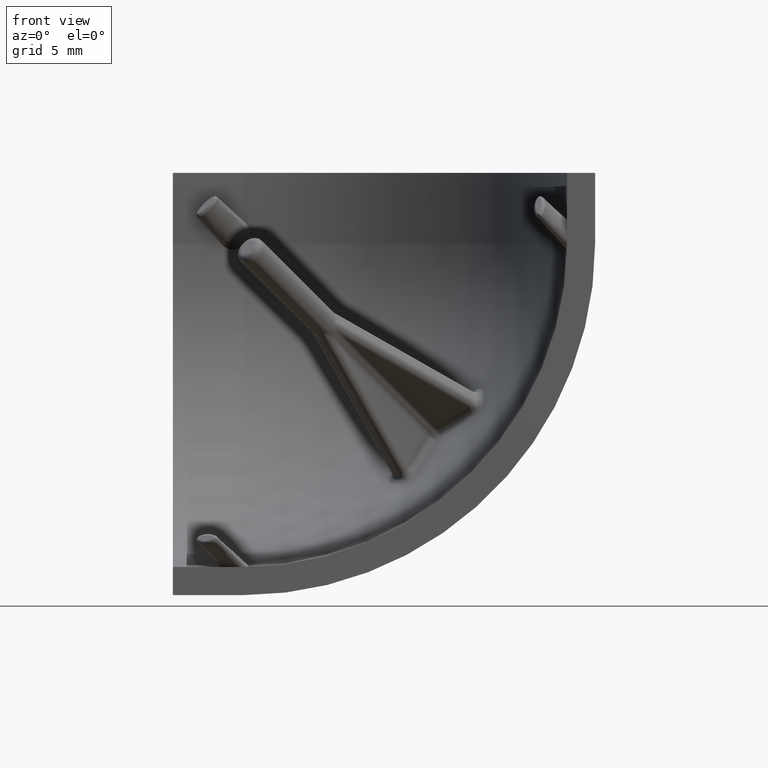
[diagram: clean part render]
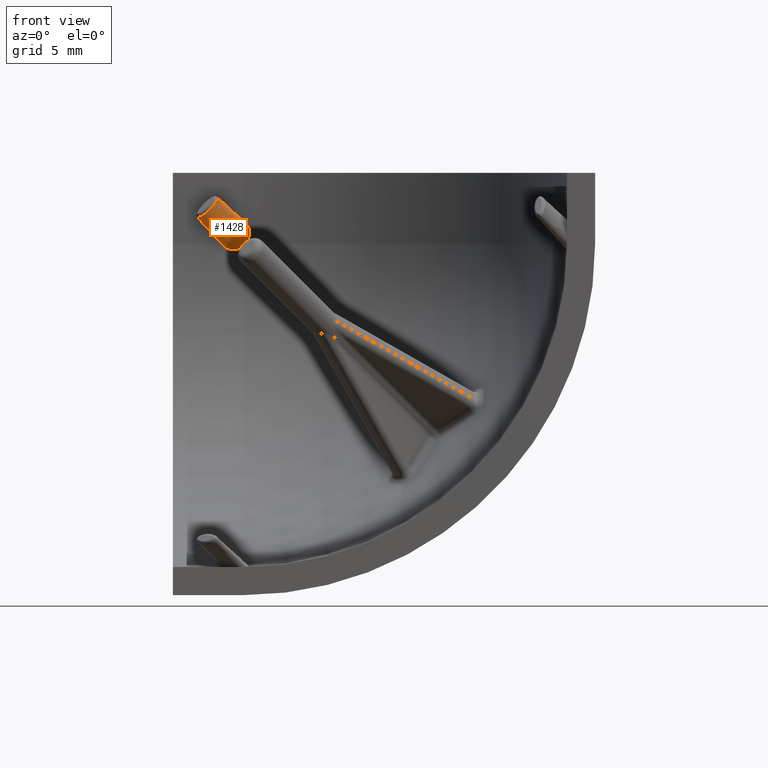
[diagram: same view with one face highlighted and labeled with its STEP entity id]
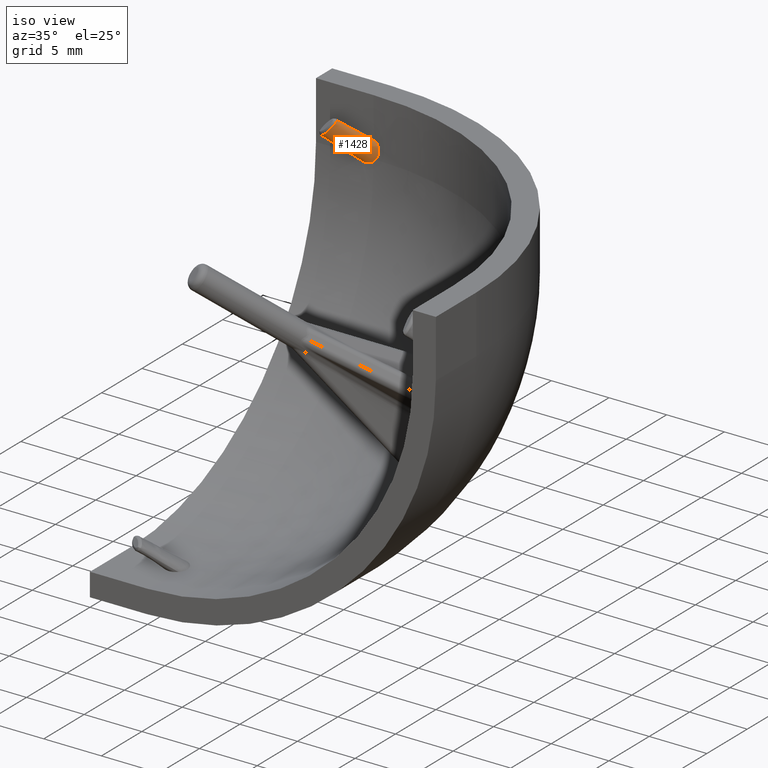
[diagram: same view with one face highlighted and labeled with its STEP entity id]
A machine part, front view. The second image highlights one B-rep face of the part: STEP entity #1428.
A second angle (iso view) of the same face is appended — the face is thin or edge-on in the first view.
In plain terms, the highlighted face is a freeform B-spline surface patch.
Its self-contained STEP definition (entity closure, byte-faithful):
#240=FACE_OUTER_BOUND('',#330,.T.);
#330=EDGE_LOOP('',(#1195,#1196,#1197,#1198,#1199,#1200));
#372=LINE('',#2154,#430);
#373=LINE('',#2329,#431);
#430=VECTOR('',#1648,10.);
#431=VECTOR('',#1649,10.);
#517=B_SPLINE_CURVE_WITH_KNOTS('',3,(#3700,#3701,#3702,#3703,#3704,#3705,
#3706,#3707,#3708,#3709,#3710,#3711,#3712,#3713,#3714,#3715,#3716,#3717,
#3718,#3719,#3720,#3721,#3722,#3723,#3724,#3725,#3726,#3727,#3728,#3729,
#3730,#3731,#3732,#3733,#3734,#3735,#3736,#3737,#3738,#3739,#3740,#3741,
#3742,#3743,#3744,#3745,#3746,#3747,#3748,#3749,#3750,#3751,#3752,#3753,
#3754,#3755,#3756,#3757,#3758,#3759,#3760,#3761,#3762,#3763,#3764,#3765,
#3766,#3767,#3768,#3769,#3770,#3771,#3772,#3773,#3774,#3775,#3776,#3777,
#3778,#3779,#3780,#3781,#3782,#3783,#3784,#3785,#3786,#3787,#3788,#3789,
#3790,#3791,#3792,#3793,#3794,#3795,#3796,#3797,#3798,#3799,#3800,#3801,
#3802,#3803,#3804,#3805,#3806,#3807,#3808,#3809,#3810,#3811,#3812,#3813,
#3814,#3815,#3816,#3817,#3818,#3819,#3820,#3821,#3822,#3823,#3824,#3825,
#3826,#3827,#3828,#3829,#3830,#3831,#3832,#3833,#3834,#3835,#3836,#3837,
#3838,#3839,#3840,#3841),.UNSPECIFIED.,.F.,.F.,(4,3,3,3,3,3,3,3,3,3,3,3,
3,3,3,3,3,3,3,3,3,3,3,3,3,3,3,3,3,3,3,3,3,3,3,3,3,3,3,3,3,3,3,3,3,3,3,4),
(0.00244537196912343,0.00248445449393359,0.00252441710611752,0.0025399652605974,
0.00258336981539401,0.00259682195368275,0.00264150173162119,0.00264555716888897,
0.00269126632456541,0.0027392655122121,0.00274827193842269,0.00280328932309507,
0.0028616416476709,0.00291414057849434,0.002975357892232,0.00304027490503444,
0.00305117190790258,0.00313214183725704,0.00321859081474745,0.00326044219092331,
0.00335211347786777,0.00345272791636951,0.00356148792971006,0.00365697184686234,
0.00365766623042668,0.00377079154052119,0.00387802063892507,0.00397543766767509,
0.00405280962034463,0.00414333337011766,0.00422810589758038,0.00426277178582211,
0.00432763230791863,0.00438867317352792,0.00440001354176547,0.00445873573655746,
0.00451395766752301,0.00456567175530199,0.00461064585508473,0.00465327079302746,
0.00466930889817401,0.00471039332471976,0.00471712174004193,0.00476649327290712,
0.00477433113852041,0.00482145126904115,0.00486545390892396,0.00486857139956189),
 .UNSPECIFIED.);
#533=B_SPLINE_CURVE_WITH_KNOTS('',3,(#5029,#5030,#5031,#5032,#5033,#5034),
 .UNSPECIFIED.,.F.,.F.,(4,2,4),(9.9999999027614E-7,0.013534445977808,0.0270688919186138),
 .UNSPECIFIED.);
#542=B_SPLINE_CURVE_WITH_KNOTS('',3,(#5455,#5456,#5457,#5458,#5459,#5460,
#5461,#5462,#5463,#5464,#5465,#5466),.UNSPECIFIED.,.F.,.F.,(4,2,2,2,2,4),
(-0.0952575882703191,-0.0835706036360662,-0.0668913170508683,-0.0406996222693887,
-0.0203613056663519,-9.99999175799182E-7),.UNSPECIFIED.);
#547=B_SPLINE_CURVE_WITH_KNOTS('',3,(#5538,#5539,#5540,#5541,#5542,#5543,
#5544,#5545,#5546,#5547,#5548,#5549),.UNSPECIFIED.,.F.,.F.,(4,2,2,2,2,4),
(9.999999404831E-7,0.0364918917763539,0.088569232202797,0.170365590608539,
0.233890730315202,0.297485880107794),.UNSPECIFIED.);
#561=VERTEX_POINT('',#2145);
#563=VERTEX_POINT('',#2153);
#566=VERTEX_POINT('',#2321);
#567=VERTEX_POINT('',#2328);
#641=VERTEX_POINT('',#5025);
#643=VERTEX_POINT('',#5028);
#701=EDGE_CURVE('',#561,#563,#372,.T.);
#705=EDGE_CURVE('',#567,#566,#373,.T.);
#762=EDGE_CURVE('',#566,#563,#517,.T.);
#793=EDGE_CURVE('',#641,#643,#533,.T.);
#842=EDGE_CURVE('',#641,#567,#542,.T.);
#857=EDGE_CURVE('',#643,#561,#547,.T.);
#1195=ORIENTED_EDGE('',*,*,#701,.F.);
#1196=ORIENTED_EDGE('',*,*,#857,.F.);
#1197=ORIENTED_EDGE('',*,*,#793,.F.);
#1198=ORIENTED_EDGE('',*,*,#842,.T.);
#1199=ORIENTED_EDGE('',*,*,#705,.T.);
#1200=ORIENTED_EDGE('',*,*,#762,.T.);
#1380=B_SPLINE_SURFACE_WITH_KNOTS('',1,3,((#5998,#5999,#6000,#6001,#6002,
#6003,#6004,#6005,#6006,#6007,#6008,#6009,#6010,#6011,#6012,#6013,#6014,
#6015,#6016,#6017,#6018,#6019,#6020,#6021,#6022,#6023,#6024,#6025,#6026,
#6027,#6028,#6029,#6030,#6031,#6032,#6033,#6034,#6035,#6036,#6037,#6038,
#6039),(#6040,#6041,#6042,#6043,#6044,#6045,#6046,#6047,#6048,#6049,#6050,
#6051,#6052,#6053,#6054,#6055,#6056,#6057,#6058,#6059,#6060,#6061,#6062,
#6063,#6064,#6065,#6066,#6067,#6068,#6069,#6070,#6071,#6072,#6073,#6074,
#6075,#6076,#6077,#6078,#6079,#6080,#6081),(#6082,#6083,#6084,#6085,#6086,
#6087,#6088,#6089,#6090,#6091,#6092,#6093,#6094,#6095,#6096,#6097,#6098,
#6099,#6100,#6101,#6102,#6103,#6104,#6105,#6106,#6107,#6108,#6109,#6110,
#6111,#6112,#6113,#6114,#6115,#6116,#6117,#6118,#6119,#6120,#6121,#6122,
#6123)),.UNSPECIFIED.,.F.,.T.,.F.,(2,1,2),(4,2,2,2,2,2,2,2,2,2,2,2,2,2,
2,2,2,2,2,2,4),(-0.144061170409498,0.,1.),(0.,0.196349540849362,0.392699081698724,
0.785398163397448,1.17809724509617,1.5707963267949,1.96349540849362,2.35619449019234,
2.74889357189107,2.94524311274043,3.14159265358979,3.33794219443916,3.53429173528852,
3.92699081698724,4.31968989868597,4.71238898038469,5.10508806208341,5.49778714378214,
5.89048622548086,6.08683576633022,6.28318530717959),.UNSPECIFIED.);
#1428=ADVANCED_FACE('',(#240),#1380,.F.);
#1648=DIRECTION('',(-0.552320892226753,-0.57699856300517,0.60167623378343));
#1649=DIRECTION('',(-0.601676233785416,-0.576998563001187,0.55232089222875));
#2145=CARTESIAN_POINT('',(3.56746331594311,27.9994687629484,-5.1563221742381));
#2153=CARTESIAN_POINT('',(1.719734099907,26.0691826905272,-3.14348004214351));
#2154=CARTESIAN_POINT('',(3.56746331594311,27.9994687629484,-5.1563221742381));
#2321=CARTESIAN_POINT('',(3.14347990895075,26.0691829554907,-1.71973396675365));
#2328=CARTESIAN_POINT('',(5.15632217425828,27.9994687629483,-3.56746331596254));
#2329=CARTESIAN_POINT('',(5.15632217425828,27.9994687629483,-3.56746331596254));
#3700=CARTESIAN_POINT('Ctrl Pts',(3.14347990943133,26.0691829559515,-1.71973396719481));
#3701=CARTESIAN_POINT('Ctrl Pts',(3.14874852083889,26.0586457331888,-1.72500257838447));
#3702=CARTESIAN_POINT('Ctrl Pts',(3.15313238774006,26.0481737038271,-1.73109065902114));
#3703=CARTESIAN_POINT('Ctrl Pts',(3.15664108818443,26.0378714134863,-1.73788413665265));
#3704=CARTESIAN_POINT('Ctrl Pts',(3.16022879997658,26.0273371290331,-1.74483059452062));
#3705=CARTESIAN_POINT('Ctrl Pts',(3.16290142711253,26.0169806794375,-1.7525142703598));
#3706=CARTESIAN_POINT('Ctrl Pts',(3.16471156100443,26.0069048615885,-1.76077983062474));
#3707=CARTESIAN_POINT('Ctrl Pts',(3.16541582531155,26.0029846881097,-1.76399569167183));
#3708=CARTESIAN_POINT('Ctrl Pts',(3.16598998073985,25.9991068708723,-1.76729930882704));
#3709=CARTESIAN_POINT('Ctrl Pts',(3.16643880817714,25.9952769346924,-1.77068037961128));
#3710=CARTESIAN_POINT('Ctrl Pts',(3.16769176428335,25.9845852043651,-1.78011904786712));
#3711=CARTESIAN_POINT('Ctrl Pts',(3.16796806024246,25.974266838802,-1.79016106368537));
#3712=CARTESIAN_POINT('Ctrl Pts',(3.16742642161413,25.9644140316122,-1.80055557805466));
#3713=CARTESIAN_POINT('Ctrl Pts',(3.16725855449131,25.9613604045108,-1.80377709352453));
#3714=CARTESIAN_POINT('Ctrl Pts',(3.16701243699376,25.9583513638319,-1.80703228469754));
#3715=CARTESIAN_POINT('Ctrl Pts',(3.16669359675696,25.9553892892019,-1.81031324640031));
#3716=CARTESIAN_POINT('Ctrl Pts',(3.16563460444868,25.9455510884738,-1.82121059499706));
#3717=CARTESIAN_POINT('Ctrl Pts',(3.16377146048195,25.9361876838317,-1.83243607835844));
#3718=CARTESIAN_POINT('Ctrl Pts',(3.16126060724886,25.9272661075218,-1.84386684806252));
#3719=CARTESIAN_POINT('Ctrl Pts',(3.16103270531548,25.9264563252282,-1.84490438163132));
#3720=CARTESIAN_POINT('Ctrl Pts',(3.16079944403092,25.925650179807,-1.84594363278034));
#3721=CARTESIAN_POINT('Ctrl Pts',(3.16056092676191,25.9248476448561,-1.84698452501313));
#3722=CARTESIAN_POINT('Ctrl Pts',(3.15787257967113,25.9158022096584,-1.85871650407475));
#3723=CARTESIAN_POINT('Ctrl Pts',(3.15451432754135,25.9072156522714,-1.87065894754879));
#3724=CARTESIAN_POINT('Ctrl Pts',(3.15062716574164,25.8990447073589,-1.88271479590605));
#3725=CARTESIAN_POINT('Ctrl Pts',(3.14654525685759,25.8904643975217,-1.89537464312869));
#3726=CARTESIAN_POINT('Ctrl Pts',(3.14188000485257,25.8823422538062,-1.90815978609889));
#3727=CARTESIAN_POINT('Ctrl Pts',(3.13675429262823,25.8746283814366,-1.92099801310459));
#3728=CARTESIAN_POINT('Ctrl Pts',(3.13579251908188,25.8731809731428,-1.92340694021087));
#3729=CARTESIAN_POINT('Ctrl Pts',(3.13481442746004,25.8717479429531,-1.9258178388051));
#3730=CARTESIAN_POINT('Ctrl Pts',(3.13382068631314,25.8703289677124,-1.92823036862109));
#3731=CARTESIAN_POINT('Ctrl Pts',(3.12775023864998,25.8616609006202,-1.94296774367044));
#3732=CARTESIAN_POINT('Ctrl Pts',(3.12108619556698,25.8534990228766,-1.9577934137104));
#3733=CARTESIAN_POINT('Ctrl Pts',(3.11395905495806,25.8457922542539,-1.97262766859665));
#3734=CARTESIAN_POINT('Ctrl Pts',(3.10639989480195,25.837618331288,-1.98836111832564));
#3735=CARTESIAN_POINT('Ctrl Pts',(3.09831973158693,25.8299561954333,-2.00410445494294));
#3736=CARTESIAN_POINT('Ctrl Pts',(3.08982988800233,25.8227475799604,-2.01980427353497));
#3737=CARTESIAN_POINT('Ctrl Pts',(3.08219167111398,25.8162620696093,-2.03392922393232));
#3738=CARTESIAN_POINT('Ctrl Pts',(3.07422104041913,25.8101436368793,-2.04801977114404));
#3739=CARTESIAN_POINT('Ctrl Pts',(3.06597223808889,25.8043530870791,-2.06206061356667));
#3740=CARTESIAN_POINT('Ctrl Pts',(3.05635357515062,25.7976009133059,-2.07843318806));
#3741=CARTESIAN_POINT('Ctrl Pts',(3.04635787695634,25.7912958476929,-2.09473569849468));
#3742=CARTESIAN_POINT('Ctrl Pts',(3.03604897046082,25.7853772741237,-2.11096453111445));
#3743=CARTESIAN_POINT('Ctrl Pts',(3.02511704002989,25.7791010085919,-2.12817416137462));
#3744=CARTESIAN_POINT('Ctrl Pts',(3.01383271698852,25.7732591967326,-2.14530128742918));
#3745=CARTESIAN_POINT('Ctrl Pts',(3.00222642224243,25.7677919043952,-2.16237494204996));
#3746=CARTESIAN_POINT('Ctrl Pts',(3.00027818368868,25.7668741619158,-2.16524093441992));
#3747=CARTESIAN_POINT('Ctrl Pts',(2.99832077802096,25.7659670023475,-2.16810548496795));
#3748=CARTESIAN_POINT('Ctrl Pts',(2.99635423811785,25.7650701788936,-2.1709688053394));
#3749=CARTESIAN_POINT('Ctrl Pts',(2.98174190856685,25.7584063528325,-2.19224464154877));
#3750=CARTESIAN_POINT('Ctrl Pts',(2.96667011956998,25.7523317710759,-2.21339084222979));
#3751=CARTESIAN_POINT('Ctrl Pts',(2.9512443814348,25.7467926220878,-2.23435567447113));
#3752=CARTESIAN_POINT('Ctrl Pts',(2.9347748192226,25.7408786516793,-2.25673914849625));
#3753=CARTESIAN_POINT('Ctrl Pts',(2.91790164038645,25.7355748298178,-2.27891622190586));
#3754=CARTESIAN_POINT('Ctrl Pts',(2.90070622735616,25.7308265712921,-2.30086005593165));
#3755=CARTESIAN_POINT('Ctrl Pts',(2.89238164423071,25.7285278610065,-2.31148342799706));
#3756=CARTESIAN_POINT('Ctrl Pts',(2.88398087716626,25.7263595341262,-2.32205262163259));
#3757=CARTESIAN_POINT('Ctrl Pts',(2.87550975466836,25.7243164345533,-2.33256695971639));
#3758=CARTESIAN_POINT('Ctrl Pts',(2.85695460135671,25.7198412276588,-2.35559757403744));
#3759=CARTESIAN_POINT('Ctrl Pts',(2.83806817320309,25.7159666162794,-2.3783589459969));
#3760=CARTESIAN_POINT('Ctrl Pts',(2.81890248689759,25.7126341529726,-2.40085745680359));
#3761=CARTESIAN_POINT('Ctrl Pts',(2.79786705878915,25.708976585422,-2.42555084889388));
#3762=CARTESIAN_POINT('Ctrl Pts',(2.77649496062545,25.7059717272106,-2.44992823635513));
#3763=CARTESIAN_POINT('Ctrl Pts',(2.7548037012703,25.7035699552385,-2.47402166791943));
#3764=CARTESIAN_POINT('Ctrl Pts',(2.73135635422976,25.7009737398681,-2.50006566296998));
#3765=CARTESIAN_POINT('Ctrl Pts',(2.70753539062726,25.699081725845,-2.52577903718884));
#3766=CARTESIAN_POINT('Ctrl Pts',(2.68331357914273,25.6978690341036,-2.55121381822589));
#3767=CARTESIAN_POINT('Ctrl Pts',(2.66204847103884,25.6968043729822,-2.57354383135052));
#3768=CARTESIAN_POINT('Ctrl Pts',(2.64047310490862,25.6962638357763,-2.59565988703281));
#3769=CARTESIAN_POINT('Ctrl Pts',(2.61854878745645,25.6962560574501,-2.61759198761863));
#3770=CARTESIAN_POINT('Ctrl Pts',(2.61838934819011,25.6962560008841,-2.61775148348592));
#3771=CARTESIAN_POINT('Ctrl Pts',(2.61822989570599,25.6962559726029,-2.6179109642782));
#3772=CARTESIAN_POINT('Ctrl Pts',(2.61807042999849,25.6962559726089,-2.61807042999865));
#3773=CARTESIAN_POINT('Ctrl Pts',(2.59209111750164,25.6962559735874,-2.64404974460512));
#3774=CARTESIAN_POINT('Ctrl Pts',(2.56576774057595,25.6970035021739,-2.66962538392921));
#3775=CARTESIAN_POINT('Ctrl Pts',(2.53908371840515,25.6984979665205,-2.69481461572716));
#3776=CARTESIAN_POINT('Ctrl Pts',(2.51379049590018,25.6999145377931,-2.71869095792613));
#3777=CARTESIAN_POINT('Ctrl Pts',(2.48817205783862,25.7020025599807,-2.74222095963515));
#3778=CARTESIAN_POINT('Ctrl Pts',(2.46221353970021,25.7047932471615,-2.76538835228096));
#3779=CARTESIAN_POINT('Ctrl Pts',(2.43863037295312,25.7073285706639,-2.78643579732185));
#3780=CARTESIAN_POINT('Ctrl Pts',(2.4147658637374,25.7104442149415,-2.80718424412642));
#3781=CARTESIAN_POINT('Ctrl Pts',(2.39062029939359,25.7141853795224,-2.82758826655116));
#3782=CARTESIAN_POINT('Ctrl Pts',(2.37144306225589,25.7171567410246,-2.84379384249175));
#3783=CARTESIAN_POINT('Ctrl Pts',(2.35208858544907,25.7205230816313,-2.85978170473103));
#3784=CARTESIAN_POINT('Ctrl Pts',(2.3325669614342,25.7243164361614,-2.875509756413));
#3785=CARTESIAN_POINT('Ctrl Pts',(2.30972702336216,25.7287545906145,-2.89391128520674));
#3786=CARTESIAN_POINT('Ctrl Pts',(2.28666178170137,25.7337760810957,-2.91195485843357));
#3787=CARTESIAN_POINT('Ctrl Pts',(2.26340465733851,25.7394272812788,-2.92956073025799));
#3788=CARTESIAN_POINT('Ctrl Pts',(2.24162512192711,25.7447194452018,-2.94604805271738));
#3789=CARTESIAN_POINT('Ctrl Pts',(2.21967702161097,25.7505640230946,-2.96215163625706));
#3790=CARTESIAN_POINT('Ctrl Pts',(2.19761489020572,25.7570078640895,-2.97777013794471));
#3791=CARTESIAN_POINT('Ctrl Pts',(2.1885930596132,25.7596429332383,-2.98415698578577));
#3792=CARTESIAN_POINT('Ctrl Pts',(2.17955251271609,25.7623783046848,-2.99046227274403));
#3793=CARTESIAN_POINT('Ctrl Pts',(2.17049859257928,25.7652175443383,-2.99667709258154));
#3794=CARTESIAN_POINT('Ctrl Pts',(2.15355853949312,25.7705298145735,-3.00830513616682));
#3795=CARTESIAN_POINT('Ctrl Pts',(2.13657564653742,25.776202293558,-3.01961481881273));
#3796=CARTESIAN_POINT('Ctrl Pts',(2.11951056507978,25.7822937825062,-3.03058715923241));
#3797=CARTESIAN_POINT('Ctrl Pts',(2.10345045162097,25.7880265417599,-3.04091333508373));
#3798=CARTESIAN_POINT('Ctrl Pts',(2.08731724730806,25.7941305664543,-3.05094087511408));
#3799=CARTESIAN_POINT('Ctrl Pts',(2.07110462667757,25.8006656486178,-3.06061670559671));
#3800=CARTESIAN_POINT('Ctrl Pts',(2.06809259389904,25.8018797571901,-3.06241431248813));
#3801=CARTESIAN_POINT('Ctrl Pts',(2.06507790508982,25.803108771955,-3.06419966685687));
#3802=CARTESIAN_POINT('Ctrl Pts',(2.06206064225822,25.8043531143433,-3.06597226778294));
#3803=CARTESIAN_POINT('Ctrl Pts',(2.04643678489976,25.8107965132332,-3.07515107174139));
#3804=CARTESIAN_POINT('Ctrl Pts',(2.03074319909411,25.8176488963294,-3.08399062418564));
#3805=CARTESIAN_POINT('Ctrl Pts',(2.01499985133117,25.8249672436886,-3.09241432831966));
#3806=CARTESIAN_POINT('Ctrl Pts',(2.000194919969,25.8318493650753,-3.10033591929238));
#3807=CARTESIAN_POINT('Ctrl Pts',(1.98534580860328,25.8391436982266,-3.10788979155603));
#3808=CARTESIAN_POINT('Ctrl Pts',(1.97049833143953,25.8469017075903,-3.11497895731897));
#3809=CARTESIAN_POINT('Ctrl Pts',(1.95659400531552,25.8541669076694,-3.12161780051286));
#3810=CARTESIAN_POINT('Ctrl Pts',(1.94269099943762,25.8618388654715,-3.1278490953639));
#3811=CARTESIAN_POINT('Ctrl Pts',(1.92885529574166,25.8699617406623,-3.13356293914969));
#3812=CARTESIAN_POINT('Ctrl Pts',(1.91682282363762,25.8770259472458,-3.13853208762744));
#3813=CARTESIAN_POINT('Ctrl Pts',(1.90485024353608,25.8844253325516,-3.14310711576779));
#3814=CARTESIAN_POINT('Ctrl Pts',(1.89295989478525,25.8922173051119,-3.14720761870385));
#3815=CARTESIAN_POINT('Ctrl Pts',(1.88169062246918,25.8996022744262,-3.15109393736344));
#3816=CARTESIAN_POINT('Ctrl Pts',(1.87049501332804,25.9073400117569,-3.15455408838229));
#3817=CARTESIAN_POINT('Ctrl Pts',(1.85942372905086,25.9154822224604,-3.1574851453952));
#3818=CARTESIAN_POINT('Ctrl Pts',(1.8552580356818,25.9185458194459,-3.15858798806976));
#3819=CARTESIAN_POINT('Ctrl Pts',(1.85111029237983,25.9216666992913,-3.15961555594453));
#3820=CARTESIAN_POINT('Ctrl Pts',(1.84698455251342,25.9248476718346,-3.16056095601919));
#3821=CARTESIAN_POINT('Ctrl Pts',(1.83641574435689,25.9329962923608,-3.16298276455383));
#3822=CARTESIAN_POINT('Ctrl Pts',(1.82598453228766,25.941539304697,-3.16487211490109));
#3823=CARTESIAN_POINT('Ctrl Pts',(1.81577730318664,25.9505197827655,-3.16609904541604));
#3824=CARTESIAN_POINT('Ctrl Pts',(1.81410566060929,25.9519905197653,-3.16629998038751));
#3825=CARTESIAN_POINT('Ctrl Pts',(1.81244010807864,25.9534729847893,-3.16648307124166));
#3826=CARTESIAN_POINT('Ctrl Pts',(1.81078112546403,25.9549673598488,-3.16664765389772));
#3827=CARTESIAN_POINT('Ctrl Pts',(1.79860790030499,25.9659327333927,-3.16785532280984));
#3828=CARTESIAN_POINT('Ctrl Pts',(1.78686190373927,25.9774775974885,-3.16805646538111));
#3829=CARTESIAN_POINT('Ctrl Pts',(1.77586176831262,25.9895100757218,-3.16702421919078));
#3830=CARTESIAN_POINT('Ctrl Pts',(1.77411546678624,25.9914202644867,-3.16686034729031));
#3831=CARTESIAN_POINT('Ctrl Pts',(1.77238792670886,25.9933426914393,-3.16666547793362));
#3832=CARTESIAN_POINT('Ctrl Pts',(1.77068037730515,25.9952769323647,-3.16643880568552));
#3833=CARTESIAN_POINT('Ctrl Pts',(1.76041483375755,26.0069053130184,-3.1650760844496));
#3834=CARTESIAN_POINT('Ctrl Pts',(1.75087655127506,26.018963827887,-3.16255603136826));
#3835=CARTESIAN_POINT('Ctrl Pts',(1.74230944181348,26.0313268094658,-3.15876030958858));
#3836=CARTESIAN_POINT('Ctrl Pts',(1.73430913645973,26.0428718502007,-3.15521571459869));
#3837=CARTESIAN_POINT('Ctrl Pts',(1.7271559671746,26.05468187226,-3.15055897695474));
#3838=CARTESIAN_POINT('Ctrl Pts',(1.72102238164101,26.0666391020042,-3.14473534736516));
#3839=CARTESIAN_POINT('Ctrl Pts',(1.72058783054296,26.0674862455365,-3.14432275596672));
#3840=CARTESIAN_POINT('Ctrl Pts',(1.72015838479675,26.0683341230451,-3.14390432473567));
#3841=CARTESIAN_POINT('Ctrl Pts',(1.719734099907,26.0691826905272,-3.14348004214351));
#5025=CARTESIAN_POINT('',(5.19100617487948,27.9992068698283,-4.99999999999998));
#5028=CARTESIAN_POINT('',(4.99999999999986,27.9992068698283,-5.19100617487972));
#5029=CARTESIAN_POINT('Ctrl Pts',(5.19100617487947,27.9992068698283,-4.99999999999998));
#5030=CARTESIAN_POINT('Ctrl Pts',(5.16287293085696,27.9994405136821,-5.03526560169146));
#5031=CARTESIAN_POINT('Ctrl Pts',(5.1327604478215,27.9995576977109,-5.06896069563495));
#5032=CARTESIAN_POINT('Ctrl Pts',(5.06895833860794,27.9995576977109,-5.1327628048485));
#5033=CARTESIAN_POINT('Ctrl Pts',(5.03526820671387,27.9994405309411,-5.16287085269227));
#5034=CARTESIAN_POINT('Ctrl Pts',(4.99999999999985,27.9992068698283,-5.1910061748797));
#5455=CARTESIAN_POINT('Ctrl Pts',(5.19100617487948,27.9992068698283,-4.99999999999998));
#5456=CARTESIAN_POINT('Ctrl Pts',(5.26687294273663,27.9985768037043,-4.90489944157419));
#5457=CARTESIAN_POINT('Ctrl Pts',(5.32923245931998,27.9976880816451,-4.79868725832621));
#5458=CARTESIAN_POINT('Ctrl Pts',(5.43914238063437,27.9958981492566,-4.52458100105343));
#5459=CARTESIAN_POINT('Ctrl Pts',(5.4566047932683,27.9954672148009,-4.38079688687408));
#5460=CARTESIAN_POINT('Ctrl Pts',(5.45815568866926,27.9954363790528,-4.10529045889892));
#5461=CARTESIAN_POINT('Ctrl Pts',(5.41803360337719,27.9962243116966,-3.97975966235841));
#5462=CARTESIAN_POINT('Ctrl Pts',(5.35953292084045,27.9972039631686,-3.83750615332032));
#5463=CARTESIAN_POINT('Ctrl Pts',(5.3275030065856,27.9977001927489,-3.77833219634689));
#5464=CARTESIAN_POINT('Ctrl Pts',(5.25072451324387,27.9986654564743,-3.66683467963108));
#5465=CARTESIAN_POINT('Ctrl Pts',(5.20565541694013,27.9991334560837,-3.61407059207717));
#5466=CARTESIAN_POINT('Ctrl Pts',(5.15632217425828,27.9994687629483,-3.56746331596254));
#5538=CARTESIAN_POINT('Ctrl Pts',(4.99999999999984,27.9992068698283,-5.19100617487969));
#5539=CARTESIAN_POINT('Ctrl Pts',(4.90491383175014,27.9985768990429,-5.26686146292897));
#5540=CARTESIAN_POINT('Ctrl Pts',(4.7987281696617,27.9976884155518,-5.32920903999969));
#5541=CARTESIAN_POINT('Ctrl Pts',(4.52467246911247,27.9958986513271,-5.43911571079753));
#5542=CARTESIAN_POINT('Ctrl Pts',(4.38091946929641,27.9954675367056,-5.45658860180696));
#5543=CARTESIAN_POINT('Ctrl Pts',(4.10544136120082,27.9954359124342,-5.45817915922299));
#5544=CARTESIAN_POINT('Ctrl Pts',(3.97990822442732,27.9962234425137,-5.41808101819472));
#5545=CARTESIAN_POINT('Ctrl Pts',(3.83760878870315,27.9972031370382,-5.35958573393027));
#5546=CARTESIAN_POINT('Ctrl Pts',(3.77841024681073,27.997699526039,-5.32755074540279));
#5547=CARTESIAN_POINT('Ctrl Pts',(3.66687123457714,27.9986651315002,-5.2507556547622));
#5548=CARTESIAN_POINT('Ctrl Pts',(3.61408618412183,27.9991333439441,-5.20567191588537));
#5549=CARTESIAN_POINT('Ctrl Pts',(3.56746331594311,27.9994687629484,-5.1563221742381));
#5998=CARTESIAN_POINT('Ctrl Pts',(7.16489133720511,29.9256567285935,-5.41127008426669));
#5999=CARTESIAN_POINT('Ctrl Pts',(7.13861670256138,29.9782059866594,-5.38499546084429));
#6000=CARTESIAN_POINT('Ctrl Pts',(7.10219902435785,30.030305949527,-5.36931317618047));
#6001=CARTESIAN_POINT('Ctrl Pts',(7.02053015044764,30.1228166868228,-5.35847131279491));
#6002=CARTESIAN_POINT('Ctrl Pts',(6.97563449116636,30.1634580545323,-5.36272560436664));
#6003=CARTESIAN_POINT('Ctrl Pts',(6.83742301460561,30.2700079982358,-5.39438713722391));
#6004=CARTESIAN_POINT('Ctrl Pts',(6.74002352398741,30.3222749119819,-5.43951971409611));
#6005=CARTESIAN_POINT('Ctrl Pts',(6.53691369057074,30.4060488138757,-5.55885564561878));
#6006=CARTESIAN_POINT('Ctrl Pts',(6.43076923923013,30.4369507615593,-5.63409814927569));
#6007=CARTESIAN_POINT('Ctrl Pts',(6.21668714565716,30.4785511540419,-5.80657985036644));
#6008=CARTESIAN_POINT('Ctrl Pts',(6.10894684900602,30.489037311524,-5.90383398953527));
#6009=CARTESIAN_POINT('Ctrl Pts',(5.90383398953506,30.489037311524,-6.10894684900622));
#6010=CARTESIAN_POINT('Ctrl Pts',(5.80657985036623,30.4785511540416,-6.21668714565743));
#6011=CARTESIAN_POINT('Ctrl Pts',(5.63409814927548,30.4369507615596,-6.43076923923029));
#6012=CARTESIAN_POINT('Ctrl Pts',(5.55885564561857,30.4060488138757,-6.53691369057089));
#6013=CARTESIAN_POINT('Ctrl Pts',(5.4395197140959,30.3222749119819,-6.74002352398767));
#6014=CARTESIAN_POINT('Ctrl Pts',(5.3943871372237,30.2700079982359,-6.83742301460579));
#6015=CARTESIAN_POINT('Ctrl Pts',(5.36272560436644,30.1634580545322,-6.97563449116658));
#6016=CARTESIAN_POINT('Ctrl Pts',(5.35847131279471,30.1228166868227,-7.02053015044784));
#6017=CARTESIAN_POINT('Ctrl Pts',(5.36931317618025,30.030305949527,-7.10219902435806));
#6018=CARTESIAN_POINT('Ctrl Pts',(5.38499593579097,29.9782050255445,-7.13861718872983));
#6019=CARTESIAN_POINT('Ctrl Pts',(5.437544232742,29.8731084316425,-7.19116548568081));
#6020=CARTESIAN_POINT('Ctrl Pts',(5.47396239711376,29.82100750766,-7.20684824529152));
#6021=CARTESIAN_POINT('Ctrl Pts',(5.55563127102395,29.7284967703642,-7.21769010867712));
#6022=CARTESIAN_POINT('Ctrl Pts',(5.60052693030523,29.6878554026546,-7.21343581710541));
#6023=CARTESIAN_POINT('Ctrl Pts',(5.73873840686602,29.5813054589513,-7.18177428424803));
#6024=CARTESIAN_POINT('Ctrl Pts',(5.83613789748414,29.5290385452051,-7.13664170737595));
#6025=CARTESIAN_POINT('Ctrl Pts',(6.03924773090091,29.4452646433113,-7.01730577585319));
#6026=CARTESIAN_POINT('Ctrl Pts',(6.1453921822415,29.4143626956275,-6.94206327219635));
#6027=CARTESIAN_POINT('Ctrl Pts',(6.35947427581441,29.3727623031453,-6.76958157110555));
#6028=CARTESIAN_POINT('Ctrl Pts',(6.4672145724656,29.362276145663,-6.67232743193673));
#6029=CARTESIAN_POINT('Ctrl Pts',(6.67232743193653,29.362276145663,-6.4672145724658));
#6030=CARTESIAN_POINT('Ctrl Pts',(6.76958157110529,29.3727623031456,-6.35947427581455));
#6031=CARTESIAN_POINT('Ctrl Pts',(6.9420632721962,29.4143626956273,-6.14539218224177));
#6032=CARTESIAN_POINT('Ctrl Pts',(7.01730577585304,29.4452646433111,-6.03924773090102));
#6033=CARTESIAN_POINT('Ctrl Pts',(7.13664170737569,29.5290385452053,-5.83613789748445));
#6034=CARTESIAN_POINT('Ctrl Pts',(7.18177428424785,29.5813054589512,-5.73873840686618));
#6035=CARTESIAN_POINT('Ctrl Pts',(7.21343581710519,29.6878554026547,-5.60052693030546));
#6036=CARTESIAN_POINT('Ctrl Pts',(7.21769010867692,29.7284967703643,-5.55563127102416));
#6037=CARTESIAN_POINT('Ctrl Pts',(7.20684824529132,29.82100750766,-5.47396239711396));
#6038=CARTESIAN_POINT('Ctrl Pts',(7.19116597184885,29.8731074705277,-5.43754470768909));
#6039=CARTESIAN_POINT('Ctrl Pts',(7.16489133720511,29.9256567285935,-5.41127008426669));
#6040=CARTESIAN_POINT('Ctrl Pts',(6.64387801838543,29.4260127018134,-4.93299534952605));
#6041=CARTESIAN_POINT('Ctrl Pts',(6.61939784859119,29.4749730315613,-4.90851518957212));
#6042=CARTESIAN_POINT('Ctrl Pts',(6.58547794142742,29.5235405591293,-4.89386756916809));
#6043=CARTESIAN_POINT('Ctrl Pts',(6.5088491336947,29.6103421231244,-4.88369481290574));
#6044=CARTESIAN_POINT('Ctrl Pts',(6.46645112278932,29.6487775743805,-4.88765737255501));
#6045=CARTESIAN_POINT('Ctrl Pts',(6.3347565408606,29.7503035008201,-4.91782602804412));
#6046=CARTESIAN_POINT('Ctrl Pts',(6.24045600299344,29.8011211350411,-4.96130893169043));
#6047=CARTESIAN_POINT('Ctrl Pts',(6.04215653718587,29.8829109683631,-5.0778185641758));
#6048=CARTESIAN_POINT('Ctrl Pts',(5.93778631688686,29.9133509525605,-5.15174880027727));
#6049=CARTESIAN_POINT('Ctrl Pts',(5.72680793130503,29.9543482325927,-5.32172990582728));
#6050=CARTESIAN_POINT('Ctrl Pts',(5.62038163324106,29.9647181517211,-5.41778628476272));
#6051=CARTESIAN_POINT('Ctrl Pts',(5.41778628476252,29.9647181517211,-5.62038163324127));
#6052=CARTESIAN_POINT('Ctrl Pts',(5.32172990582707,29.9543482325925,-5.72680793130529));
#6053=CARTESIAN_POINT('Ctrl Pts',(5.15174880027707,29.9133509525608,-5.93778631688701));
#6054=CARTESIAN_POINT('Ctrl Pts',(5.07781856417559,29.8829109683631,-6.04215653718603));
#6055=CARTESIAN_POINT('Ctrl Pts',(4.96130893169022,29.8011211350411,-6.24045600299369));
#6056=CARTESIAN_POINT('Ctrl Pts',(4.91782602804392,29.7503035008202,-6.33475654086078));
#6057=CARTESIAN_POINT('Ctrl Pts',(4.8876573725548,29.6487775743804,-6.46645112278954));
#6058=CARTESIAN_POINT('Ctrl Pts',(4.88369481290555,29.6103421231243,-6.5088491336949));
#6059=CARTESIAN_POINT('Ctrl Pts',(4.89386756916787,29.5235405591294,-6.58547794142763));
#6060=CARTESIAN_POINT('Ctrl Pts',(4.90851560843541,29.4749721839942,-6.61939827729522));
#6061=CARTESIAN_POINT('Ctrl Pts',(4.95747509061629,29.3770532196325,-6.66835775947605));
#6062=CARTESIAN_POINT('Ctrl Pts',(4.99139542648387,29.3284848444974,-6.68300579874358));
#6063=CARTESIAN_POINT('Ctrl Pts',(5.06802423421657,29.2416832805023,-6.69317855500596));
#6064=CARTESIAN_POINT('Ctrl Pts',(5.11042224512195,29.2032478292461,-6.68921599535671));
#6065=CARTESIAN_POINT('Ctrl Pts',(5.24211682705071,29.1017219028067,-6.6590473398675));
#6066=CARTESIAN_POINT('Ctrl Pts',(5.3364173649178,29.0509042685856,-6.6155644362213));
#6067=CARTESIAN_POINT('Ctrl Pts',(5.53471683072546,28.9691144352636,-6.49905480373585));
#6068=CARTESIAN_POINT('Ctrl Pts',(5.63908705102446,28.9386744510659,-6.42512456763443));
#6069=CARTESIAN_POINT('Ctrl Pts',(5.85006543660622,28.8976771710342,-6.25514346208439));
#6070=CARTESIAN_POINT('Ctrl Pts',(5.95649173467025,28.8873072519057,-6.15908708314894));
#6071=CARTESIAN_POINT('Ctrl Pts',(6.15908708314874,28.8873072519057,-5.95649173467044));
#6072=CARTESIAN_POINT('Ctrl Pts',(6.25514346208414,28.8976771710344,-5.85006543660637));
#6073=CARTESIAN_POINT('Ctrl Pts',(6.42512456763429,28.9386744510657,-5.63908705102471));
#6074=CARTESIAN_POINT('Ctrl Pts',(6.49905480373569,28.9691144352634,-5.53471683072557));
#6075=CARTESIAN_POINT('Ctrl Pts',(6.61556443622106,29.0509042685858,-5.33641736491809));
#6076=CARTESIAN_POINT('Ctrl Pts',(6.65904733986733,29.1017219028066,-5.24211682705087));
#6077=CARTESIAN_POINT('Ctrl Pts',(6.6892159953565,29.2032478292462,-5.11042224512217));
#6078=CARTESIAN_POINT('Ctrl Pts',(6.69317855500576,29.2416832805024,-5.06802423421678));
#6079=CARTESIAN_POINT('Ctrl Pts',(6.68300579874339,29.3284848444973,-4.99139542648407));
#6080=CARTESIAN_POINT('Ctrl Pts',(6.66835818817967,29.3770523720655,-4.95747550947999));
#6081=CARTESIAN_POINT('Ctrl Pts',(6.64387801838543,29.4260127018134,-4.93299534952605));
#6082=CARTESIAN_POINT('Ctrl Pts',(3.02726628783593,25.9577358208197,-1.61305331808812));
#6083=CARTESIAN_POINT('Ctrl Pts',(3.01524238814131,25.9817836199547,-1.60102941864745));
#6084=CARTESIAN_POINT('Ctrl Pts',(2.99866074799752,26.0058307629562,-1.59356391579005));
#6085=CARTESIAN_POINT('Ctrl Pts',(2.95701753814081,26.053002124833,-1.58803576376989));
#6086=CARTESIAN_POINT('Ctrl Pts',(2.93195694278463,26.0761252164355,-1.58997326752353));
#6087=CARTESIAN_POINT('Ctrl Pts',(2.84549935715062,26.1427769484647,-1.60977912112846));
#6088=CARTESIAN_POINT('Ctrl Pts',(2.77271018658826,26.1835344150427,-1.6418108251128));
#6089=CARTESIAN_POINT('Ctrl Pts',(2.60780186702387,26.2515518448352,-1.73870171488451));
#6090=CARTESIAN_POINT('Ctrl Pts',(2.51574746393323,26.2787851114637,-1.80352285134656));
#6091=CARTESIAN_POINT('Ctrl Pts',(2.32631345413511,26.3155958889937,-1.95614608361509));
#6092=CARTESIAN_POINT('Ctrl Pts',(2.22900827166007,26.3251589400849,-2.04388821499877));
#6093=CARTESIAN_POINT('Ctrl Pts',(2.04388821499859,26.3251589400849,-2.22900827166024));
#6094=CARTESIAN_POINT('Ctrl Pts',(1.95614608361493,26.3155958889935,-2.32631345413531));
#6095=CARTESIAN_POINT('Ctrl Pts',(1.80352285134637,26.2787851114639,-2.51574746393338));
#6096=CARTESIAN_POINT('Ctrl Pts',(1.73870171488434,26.2515518448354,-2.60780186702404));
#6097=CARTESIAN_POINT('Ctrl Pts',(1.64181082511263,26.1835344150425,-2.77271018658844));
#6098=CARTESIAN_POINT('Ctrl Pts',(1.6097791211283,26.1427769484647,-2.84549935715078));
#6099=CARTESIAN_POINT('Ctrl Pts',(1.58997326752335,26.0761252164355,-2.93195694278481));
#6100=CARTESIAN_POINT('Ctrl Pts',(1.58803576376972,26.053002124833,-2.95701753814098));
#6101=CARTESIAN_POINT('Ctrl Pts',(1.59356391578988,26.0058307629561,-2.99866074799769));
#6102=CARTESIAN_POINT('Ctrl Pts',(1.60102944820814,25.9817835605792,-3.0152424179563));
#6103=CARTESIAN_POINT('Ctrl Pts',(1.62507718796775,25.9336880810601,-3.03929015771589));
#6104=CARTESIAN_POINT('Ctrl Pts',(1.64165885792636,25.9096408786831,-3.04675569013417));
#6105=CARTESIAN_POINT('Ctrl Pts',(1.68330206778306,25.8624695168063,-3.05228384215432));
#6106=CARTESIAN_POINT('Ctrl Pts',(1.70836266313924,25.8393464252037,-3.0503463384007));
#6107=CARTESIAN_POINT('Ctrl Pts',(1.79482024877326,25.7726946931749,-3.03054048479573));
#6108=CARTESIAN_POINT('Ctrl Pts',(1.8676094193356,25.7319372265966,-2.99850878081142));
#6109=CARTESIAN_POINT('Ctrl Pts',(2.03251773890002,25.6639197968041,-2.90161789103969));
#6110=CARTESIAN_POINT('Ctrl Pts',(2.12457214199067,25.6366865301752,-2.83679675457766));
#6111=CARTESIAN_POINT('Ctrl Pts',(2.31400615178873,25.599875752646,-2.68417352230912));
#6112=CARTESIAN_POINT('Ctrl Pts',(2.41131133426386,25.5903127015544,-2.5964313909254));
#6113=CARTESIAN_POINT('Ctrl Pts',(2.59643139092523,25.5903127015544,-2.41131133426402));
#6114=CARTESIAN_POINT('Ctrl Pts',(2.68417352230895,25.599875752646,-2.31400615178892));
#6115=CARTESIAN_POINT('Ctrl Pts',(2.83679675457749,25.6366865301752,-2.12457214199082));
#6116=CARTESIAN_POINT('Ctrl Pts',(2.90161789103952,25.6639197968039,-2.03251773890019));
#6117=CARTESIAN_POINT('Ctrl Pts',(2.99850878081125,25.7319372265967,-1.86760941933577));
#6118=CARTESIAN_POINT('Ctrl Pts',(3.03054048479557,25.7726946931747,-1.79482024877343));
#6119=CARTESIAN_POINT('Ctrl Pts',(3.05034633840052,25.8393464252037,-1.70836266313941));
#6120=CARTESIAN_POINT('Ctrl Pts',(3.05228384215416,25.8624695168063,-1.68330206778323));
#6121=CARTESIAN_POINT('Ctrl Pts',(3.04675569013399,25.9096408786831,-1.64165885792654));
#6122=CARTESIAN_POINT('Ctrl Pts',(3.03929018753054,25.9336880216846,-1.62507721752879));
#6123=CARTESIAN_POINT('Ctrl Pts',(3.02726628783593,25.9577358208197,-1.61305331808812));